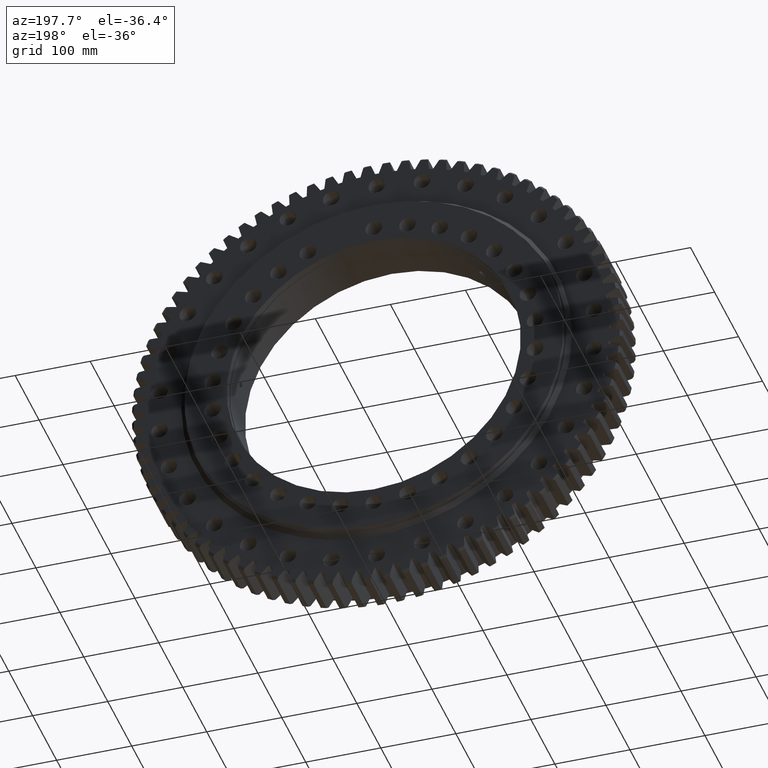
[diagram: clean part render]
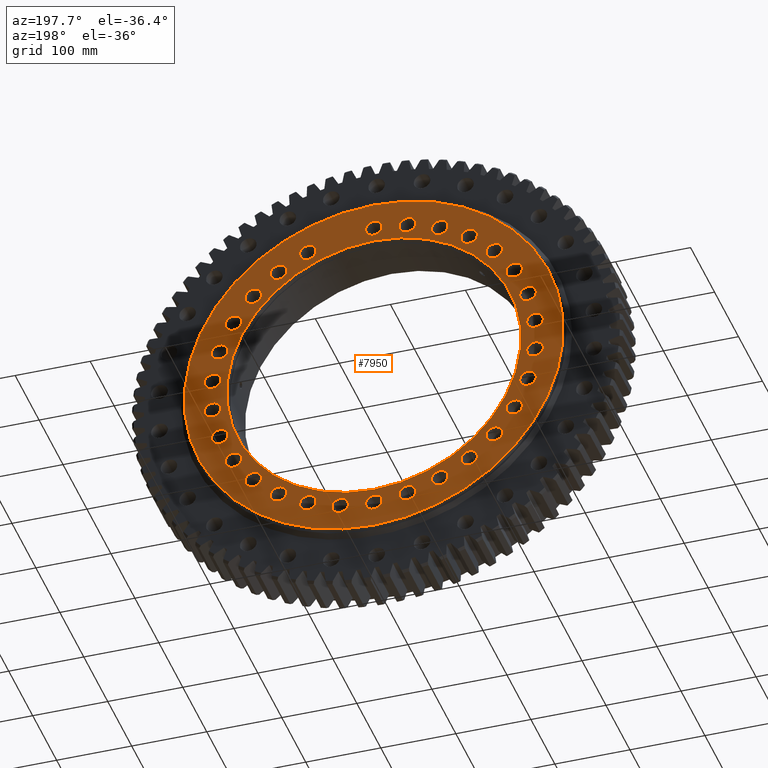
[diagram: same view with one face highlighted and labeled with its STEP entity id]
A machine part, auxiliary view. The second image highlights one B-rep face of the part: STEP entity #7950.
In plain terms, the highlighted planar face has unit normal (0, -1, 0).
Its self-contained STEP definition (entity closure, byte-faithful):
#9 = DIRECTION ( 'NONE',  ( 3.081487911019577400E-033, 1.000000000000000000, -2.727064569436389400E-017 ) ) ;
#85 = DIRECTION ( 'NONE',  ( 0.0000000000000000000, 1.000000000000000000, -2.727064569436389400E-017 ) ) ;
#88 = DIRECTION ( 'NONE',  ( -0.0000000000000000000, 1.000000000000000000, -2.727064569436389700E-017 ) ) ;
#89 = ORIENTED_EDGE ( 'NONE', *, *, #14881, .F. ) ;
#95 = DIRECTION ( 'NONE',  ( 0.9945218953682722900, 0.0000000000000000000, 0.1045284632676636000 ) ) ;
#107 = FACE_BOUND ( 'NONE', #11548, .T. ) ;
#123 = VERTEX_POINT ( 'NONE', #18069 ) ;
#128 = CARTESIAN_POINT ( 'NONE',  ( -126.9616144951719000, 42.49999999999998600, 174.7476707849903300 ) ) ;
#150 = CARTESIAN_POINT ( 'NONE',  ( 214.8167293995471700, 42.49999999999998600, 33.57814806581223600 ) ) ;
#190 = DIRECTION ( 'NONE',  ( 0.7431448254773853600, 0.0000000000000000000, 0.6691306063588680100 ) ) ;
#197 = DIRECTION ( 'NONE',  ( 3.081487911019577400E-033, 1.000000000000000000, -2.727064569436389400E-017 ) ) ;
#228 = CARTESIAN_POINT ( 'NONE',  ( 187.0614872174390700, 42.49999999999998600, 118.9999999999994900 ) ) ;
#278 = EDGE_LOOP ( 'NONE', ( #6828, #15439 ) ) ;
#388 = AXIS2_PLACEMENT_3D ( 'NONE', #7266, #20115, #9087 ) ;
#394 = CARTESIAN_POINT ( 'NONE',  ( 87.85511490437149000, 42.49999999999997900, -197.3258188508024500 ) ) ;
#408 = VERTEX_POINT ( 'NONE', #20280 ) ;
#415 = DIRECTION ( 'NONE',  ( 0.0000000000000000000, 0.0000000000000000000, 1.000000000000000000 ) ) ;
#428 = VERTEX_POINT ( 'NONE', #150 ) ;
#500 = DIRECTION ( 'NONE',  ( 3.081487911019577400E-033, 1.000000000000000000, -2.727064569436389700E-017 ) ) ;
#533 = CIRCLE ( 'NONE', #9319, 10.99999999999998000 ) ;
#630 = ORIENTED_EDGE ( 'NONE', *, *, #8201, .F. ) ;
#670 = ORIENTED_EDGE ( 'NONE', *, *, #1595, .F. ) ;
#704 = VERTEX_POINT ( 'NONE', #5692 ) ;
#740 = CARTESIAN_POINT ( 'NONE',  ( 187.0614872174390700, 42.49999999999998600, 107.9999999999995000 ) ) ;
#796 = DIRECTION ( 'NONE',  ( -0.9510565162951520900, 0.0000000000000000000, -0.3090169943749517300 ) ) ;
#833 = DIRECTION ( 'NONE',  ( 0.5877852522924625900, 0.0000000000000000000, 0.8090169943749552200 ) ) ;
#842 = ORIENTED_EDGE ( 'NONE', *, *, #19606, .F. ) ;
#898 = VERTEX_POINT ( 'NONE', #15735 ) ;
#975 = CARTESIAN_POINT ( 'NONE',  ( -44.90892521663774800, 42.49999999999997900, -200.2798817585016900 ) ) ;
#979 = DIRECTION ( 'NONE',  ( 0.9510565162951499800, 0.0000000000000000000, 0.3090169943749581600 ) ) ;
#1002 = DIRECTION ( 'NONE',  ( 0.8660254037844433700, 0.0000000000000000000, -0.4999999999999919500 ) ) ;
#1045 = DIRECTION ( 'NONE',  ( -0.9945218953682737300, 0.0000000000000000000, 0.1045284632676502500 ) ) ;
#1070 = EDGE_CURVE ( 'NONE', #17991, #16471, #6625, .T. ) ;
#1104 = ORIENTED_EDGE ( 'NONE', *, *, #14939, .F. ) ;
#1114 = VERTEX_POINT ( 'NONE', #7047 ) ;
#1134 = EDGE_CURVE ( 'NONE', #4008, #8260, #15826, .T. ) ;
#1156 = DIRECTION ( 'NONE',  ( 0.5877852522924625900, 0.0000000000000000000, 0.8090169943749552200 ) ) ;
#1161 = EDGE_CURVE ( 'NONE', #3146, #123, #6062, .T. ) ;
#1192 = DIRECTION ( 'NONE',  ( -3.081487911019577400E-033, 1.000000000000000000, -2.727064569436390300E-017 ) ) ;
#1194 = VERTEX_POINT ( 'NONE', #10556 ) ;
#1241 = DIRECTION ( 'NONE',  ( 1.540743955509788700E-033, 1.000000000000000000, -2.727064569436389700E-017 ) ) ;
#1244 = AXIS2_PLACEMENT_3D ( 'NONE', #394, #13225, #2225 ) ;
#1311 = DIRECTION ( 'NONE',  ( -3.081487911019577400E-033, 1.000000000000000000, -2.727064569436389100E-017 ) ) ;
#1362 = DIRECTION ( 'NONE',  ( -0.0000000000000000000, 1.000000000000000000, -2.727064569436389700E-017 ) ) ;
#1377 = VERTEX_POINT ( 'NONE', #8453 ) ;
#1407 = ORIENTED_EDGE ( 'NONE', *, *, #20841, .F. ) ;
#1458 = EDGE_CURVE ( 'NONE', #21632, #9082, #4061, .T. ) ;
#1531 = FACE_OUTER_BOUND ( 'NONE', #17946, .T. ) ;
#1534 = VERTEX_POINT ( 'NONE', #18739 ) ;
#1535 = CIRCLE ( 'NONE', #13475, 11.00000000000000000 ) ;
#1572 = VERTEX_POINT ( 'NONE', #18655 ) ;
#1595 = EDGE_CURVE ( 'NONE', #14203, #898, #15801, .T. ) ;
#1610 = DIRECTION ( 'NONE',  ( 3.081487911019577400E-033, 1.000000000000000000, -2.727064569436389400E-017 ) ) ;
#1633 = DIRECTION ( 'NONE',  ( 0.5877852522924800200, 0.0000000000000000000, -0.8090169943749423400 ) ) ;
#1820 = ORIENTED_EDGE ( 'NONE', *, *, #12333, .F. ) ;
#1837 = ORIENTED_EDGE ( 'NONE', *, *, #19905, .F. ) ;
#1947 = ORIENTED_EDGE ( 'NONE', *, *, #23724, .F. ) ;
#1964 = DIRECTION ( 'NONE',  ( -0.5877852522924742500, 0.0000000000000000000, 0.8090169943749464500 ) ) ;
#1978 = DIRECTION ( 'NONE',  ( 3.081487911019577400E-033, 1.000000000000000000, -2.727064569436389700E-017 ) ) ;
#1991 = CIRCLE ( 'NONE', #20327, 10.99999999999999800 ) ;
#2075 = DIRECTION ( 'NONE',  ( 3.081487911019577400E-033, 1.000000000000000000, -2.727064569436389700E-017 ) ) ;
#2084 = CARTESIAN_POINT ( 'NONE',  ( -87.85511490437453100, 42.49999999999997900, -186.3258188508011100 ) ) ;
#2088 = CARTESIAN_POINT ( 'NONE',  ( 44.90892521663451500, 42.49999999999997900, -211.2798817585023400 ) ) ;
#2103 = FACE_BOUND ( 'NONE', #7501, .T. ) ;
#2145 = AXIS2_PLACEMENT_3D ( 'NONE', #3776, #16592, #5602 ) ;
#2208 = DIRECTION ( 'NONE',  ( -3.081487911019577400E-033, 1.000000000000000000, -2.727064569436390300E-017 ) ) ;
#2225 = DIRECTION ( 'NONE',  ( 0.4067366430758076500, 0.0000000000000000000, -0.9135454576425975400 ) ) ;
#2240 = AXIS2_PLACEMENT_3D ( 'NONE', #23136, #12134, #1156 ) ;
#2256 = CARTESIAN_POINT ( 'NONE',  ( 44.90892521663451500, 42.49999999999997900, -200.2798817585023700 ) ) ;
#2262 = AXIS2_PLACEMENT_3D ( 'NONE', #10991, #9, #12842 ) ;
#2369 = AXIS2_PLACEMENT_3D ( 'NONE', #16162, #5171, #18028 ) ;
#2377 = ORIENTED_EDGE ( 'NONE', *, *, #23804, .F. ) ;
#2378 = EDGE_LOOP ( 'NONE', ( #23634, #6316 ) ) ;
#2410 = CARTESIAN_POINT ( 'NONE',  ( 2.400307726328812400E-014, 42.49999999999997900, -196.0000000000000000 ) ) ;
#2472 = CARTESIAN_POINT ( 'NONE',  ( 126.9616144951731200, 42.49999999999997900, -174.7476707849894500 ) ) ;
#2507 = DIRECTION ( 'NONE',  ( -6.162975822039154700E-033, 1.000000000000000000, -2.727064569436388700E-017 ) ) ;
#2548 = ORIENTED_EDGE ( 'NONE', *, *, #22255, .F. ) ;
#2555 = EDGE_LOOP ( 'NONE', ( #21933, #3973 ) ) ;
#2580 = DIRECTION ( 'NONE',  ( 0.8660254037844331600, 0.0000000000000000000, 0.5000000000000096600 ) ) ;
#2617 = DIRECTION ( 'NONE',  ( 0.0000000000000000000, 1.000000000000000000, -2.727064569436390300E-017 ) ) ;
#2695 = FACE_BOUND ( 'NONE', #18066, .T. ) ;
#2718 = AXIS2_PLACEMENT_3D ( 'NONE', #8237, #21099, #10068 ) ;
#2726 = VERTEX_POINT ( 'NONE', #8627 ) ;
#2747 = EDGE_LOOP ( 'NONE', ( #630, #1947 ) ) ;
#2811 = ORIENTED_EDGE ( 'NONE', *, *, #8851, .T. ) ;
#2984 = DIRECTION ( 'NONE',  ( 3.081487911019577400E-033, 1.000000000000000000, -2.727064569436389700E-017 ) ) ;
#2999 = CIRCLE ( 'NONE', #9293, 10.99999999999998000 ) ;
#3022 = CIRCLE ( 'NONE', #21210, 196.0000000000000000 ) ;
#3021 = CIRCLE ( 'NONE', #8002, 10.99999999999999600 ) ;
#3037 = EDGE_CURVE ( 'NONE', #20845, #5108, #7656, .T. ) ;
#3093 = AXIS2_PLACEMENT_3D ( 'NONE', #18202, #7188, #20035 ) ;
#3107 = ORIENTED_EDGE ( 'NONE', *, *, #10676, .T. ) ;
#3111 = CARTESIAN_POINT ( 'NONE',  ( -126.9616144951758200, 42.49999999999997900, -185.7476707849874600 ) ) ;
#3146 = VERTEX_POINT ( 'NONE', #13233 ) ;
#3225 = EDGE_CURVE ( 'NONE', #9479, #15972, #23151, .T. ) ;
#3272 = FACE_BOUND ( 'NONE', #2555, .T. ) ;
#3400 = VERTEX_POINT ( 'NONE', #5029 ) ;
#3406 = CIRCLE ( 'NONE', #18406, 10.99999999999998000 ) ;
#3479 = CIRCLE ( 'NONE', #2240, 10.99999999999998800 ) ;
#3623 = CIRCLE ( 'NONE', #4004, 10.99999999999999100 ) ;
#3634 = EDGE_CURVE ( 'NONE', #18002, #3400, #6460, .T. ) ;
#3725 = EDGE_LOOP ( 'NONE', ( #15157, #10964 ) ) ;
#3776 = CARTESIAN_POINT ( 'NONE',  ( 0.0000000000000000000, 42.49999999999998600, 0.0000000000000000000 ) ) ;
#3789 = CARTESIAN_POINT ( 'NONE',  ( 214.8167293995469700, 42.49999999999998600, -22.57814806581411900 ) ) ;
#3812 = CIRCLE ( 'NONE', #20946, 11.00000000000000000 ) ;
#3849 = FACE_BOUND ( 'NONE', #18312, .T. ) ;
#3944 = DIRECTION ( 'NONE',  ( -3.081487911019577400E-033, 1.000000000000000000, -2.727064569436389700E-017 ) ) ;
#3945 = DIRECTION ( 'NONE',  ( 0.2079116908177661400, 0.0000000000000000000, -0.9781476007338042500 ) ) ;
#3973 = ORIENTED_EDGE ( 'NONE', *, *, #17455, .F. ) ;
#3995 = CARTESIAN_POINT ( 'NONE',  ( 87.85511490437325200, 42.49999999999998600, 186.3258188508017100 ) ) ;
#4004 = AXIS2_PLACEMENT_3D ( 'NONE', #2472, #15306, #4308 ) ;
#4008 = VERTEX_POINT ( 'NONE', #5238 ) ;
#4042 = CARTESIAN_POINT ( 'NONE',  ( 87.85511490437149000, 42.49999999999997900, -208.3258188508024200 ) ) ;
#4061 = CIRCLE ( 'NONE', #20877, 10.99999999999999100 ) ;
#4102 = EDGE_LOOP ( 'NONE', ( #22699, #16145 ) ) ;
#4123 = AXIS2_PLACEMENT_3D ( 'NONE', #10653, #1610, #6877 ) ;
#4124 = AXIS2_PLACEMENT_3D ( 'NONE', #23002, #12000, #1045 ) ;
#4190 = DIRECTION ( 'NONE',  ( 7.703719777548943400E-034, 1.000000000000000000, -2.727064569436389700E-017 ) ) ;
#4308 = DIRECTION ( 'NONE',  ( 0.5877852522924800200, 0.0000000000000000000, -0.8090169943749423400 ) ) ;
#4421 = FACE_BOUND ( 'NONE', #15576, .T. ) ;
#4459 = EDGE_CURVE ( 'NONE', #5108, #20845, #3022, .T. ) ;
#4553 = ORIENTED_EDGE ( 'NONE', *, *, #12688, .F. ) ;
#4590 = VERTEX_POINT ( 'NONE', #21168 ) ;
#4620 = CIRCLE ( 'NONE', #2369, 10.99999999999997900 ) ;
#4806 = EDGE_CURVE ( 'NONE', #5969, #5846, #11308, .T. ) ;
#4826 = AXIS2_PLACEMENT_3D ( 'NONE', #11455, #500, #13332 ) ;
#4835 = CIRCLE ( 'NONE', #12715, 10.99999999999999300 ) ;
#4859 = EDGE_CURVE ( 'NONE', #3400, #18002, #8997, .T. ) ;
#4894 = CARTESIAN_POINT ( 'NONE',  ( -126.9616144951758200, 42.49999999999997900, -174.7476707849874900 ) ) ;
#4920 = EDGE_CURVE ( 'NONE', #5861, #1534, #12165, .T. ) ;
#4975 = AXIS2_PLACEMENT_3D ( 'NONE', #22062, #11071, #95 ) ;
#5014 = AXIS2_PLACEMENT_3D ( 'NONE', #17232, #6207, #19092 ) ;
#5029 = CARTESIAN_POINT ( 'NONE',  ( -126.9616144951719000, 42.49999999999998600, 163.7476707849903600 ) ) ;
#5108 = VERTEX_POINT ( 'NONE', #2410 ) ;
#5163 = AXIS2_PLACEMENT_3D ( 'NONE', #13601, #2617, #15445 ) ;
#5171 = DIRECTION ( 'NONE',  ( 7.703719777548943400E-034, 1.000000000000000000, -2.727064569436389700E-017 ) ) ;
#5238 = CARTESIAN_POINT ( 'NONE',  ( 187.0614872174382100, 42.49999999999998600, -97.00000000000098100 ) ) ;
#5262 = CIRCLE ( 'NONE', #13717, 252.4999999999999400 ) ;
#5366 = DIRECTION ( 'NONE',  ( -3.081487911019577400E-033, 1.000000000000000000, -2.727064569436389700E-017 ) ) ;
#5465 = CIRCLE ( 'NONE', #388, 10.99999999999999600 ) ;
#5490 = CIRCLE ( 'NONE', #14418, 10.99999999999999500 ) ;
#5513 = EDGE_CURVE ( 'NONE', #19658, #22278, #16199, .T. ) ;
#5523 = VERTEX_POINT ( 'NONE', #16975 ) ;
#5535 = CARTESIAN_POINT ( 'NONE',  ( 214.8167293995469700, 42.49999999999998600, -22.57814806581411900 ) ) ;
#5602 = DIRECTION ( 'NONE',  ( 0.0000000000000000000, -3.540251991789402200E-017, -1.000000000000000000 ) ) ;
#5609 = DIRECTION ( 'NONE',  ( 0.9945218953682744000, 0.0000000000000000000, -0.1045284632676437000 ) ) ;
#5643 = AXIS2_PLACEMENT_3D ( 'NONE', #18071, #21755, #10753 ) ;
#5675 = ORIENTED_EDGE ( 'NONE', *, *, #4920, .F. ) ;
#5692 = CARTESIAN_POINT ( 'NONE',  ( 214.8167293995469700, 42.49999999999998600, -33.57814806581410500 ) ) ;
#5743 = EDGE_CURVE ( 'NONE', #6963, #1194, #7877, .T. ) ;
#5745 = EDGE_CURVE ( 'NONE', #10323, #704, #2999, .T. ) ;
#5777 = CARTESIAN_POINT ( 'NONE',  ( -214.8167293995473100, 42.49999999999998600, -33.57814806581082900 ) ) ;
#5846 = VERTEX_POINT ( 'NONE', #16772 ) ;
#5861 = VERTEX_POINT ( 'NONE', #2084 ) ;
#5872 = EDGE_CURVE ( 'NONE', #12977, #11713, #11014, .T. ) ;
#5969 = VERTEX_POINT ( 'NONE', #17246 ) ;
#6015 = CARTESIAN_POINT ( 'NONE',  ( 160.5192823031163400, 42.49999999999998600, -155.5322109735143400 ) ) ;
#6023 = EDGE_CURVE ( 'NONE', #21188, #1114, #22201, .T. ) ;
#6040 = CARTESIAN_POINT ( 'NONE',  ( 87.85511490437325200, 42.49999999999998600, 208.3258188508016800 ) ) ;
#6062 = CIRCLE ( 'NONE', #12722, 10.99999999999997900 ) ;
#6075 = CIRCLE ( 'NONE', #9172, 10.99999999999998400 ) ;
#6080 = DIRECTION ( 'NONE',  ( 9.244463733058732100E-033, 1.000000000000000000, -2.727064569436389400E-017 ) ) ;
#6172 = CARTESIAN_POINT ( 'NONE',  ( 160.5192823031163400, 42.49999999999998600, -144.5322109735143400 ) ) ;
#6207 = DIRECTION ( 'NONE',  ( 7.703719777548943400E-034, 1.000000000000000000, -2.727064569436389400E-017 ) ) ;
#6252 = EDGE_CURVE ( 'NONE', #11713, #12977, #13884, .T. ) ;
#6279 = ORIENTED_EDGE ( 'NONE', *, *, #7327, .F. ) ;
#6296 = DIRECTION ( 'NONE',  ( -2.189528850507526700E-047, 1.000000000000000000, -2.727064569436389100E-017 ) ) ;
#6316 = ORIENTED_EDGE ( 'NONE', *, *, #4459, .T. ) ;
#6367 = EDGE_LOOP ( 'NONE', ( #18520, #15188 ) ) ;
#6384 = FACE_BOUND ( 'NONE', #2378, .T. ) ;
#6460 = CIRCLE ( 'NONE', #12288, 11.00000000000000500 ) ;
#6493 = CARTESIAN_POINT ( 'NONE',  ( -44.90892521663307900, 42.49999999999998600, 200.2798817585027100 ) ) ;
#6552 = VERTEX_POINT ( 'NONE', #4042 ) ;
#6580 = EDGE_LOOP ( 'NONE', ( #19909, #18492 ) ) ;
#6597 = ORIENTED_EDGE ( 'NONE', *, *, #10840, .F. ) ;
#6625 = CIRCLE ( 'NONE', #4123, 10.99999999999999300 ) ;
#6659 = CIRCLE ( 'NONE', #22875, 10.99999999999999300 ) ;
#6684 = VERTEX_POINT ( 'NONE', #19057 ) ;
#6687 = CIRCLE ( 'NONE', #7772, 10.99999999999998000 ) ;
#6733 = DIRECTION ( 'NONE',  ( -0.5877852522924699200, 0.0000000000000000000, -0.8090169943749497800 ) ) ;
#6770 = DIRECTION ( 'NONE',  ( 1.540743955509788700E-033, 1.000000000000000000, -2.727064569436389100E-017 ) ) ;
#6822 = AXIS2_PLACEMENT_3D ( 'NONE', #11064, #85, #12915 ) ;
#6828 = ORIENTED_EDGE ( 'NONE', *, *, #6252, .F. ) ;
#6877 = DIRECTION ( 'NONE',  ( -0.5877852522924699200, 0.0000000000000000000, -0.8090169943749497800 ) ) ;
#6892 = ORIENTED_EDGE ( 'NONE', *, *, #15784, .F. ) ;
#6962 = FACE_BOUND ( 'NONE', #23810, .T. ) ;
#6963 = VERTEX_POINT ( 'NONE', #14448 ) ;
#6965 = ORIENTED_EDGE ( 'NONE', *, *, #3634, .F. ) ;
#6984 = CARTESIAN_POINT ( 'NONE',  ( 205.4282075197528500, 42.49999999999998600, -77.74767078498962300 ) ) ;
#6996 = EDGE_CURVE ( 'NONE', #5523, #21861, #7018, .T. ) ;
#7018 = CIRCLE ( 'NONE', #23480, 10.99999999999998800 ) ;
#7046 = VERTEX_POINT ( 'NONE', #14772 ) ;
#7047 = CARTESIAN_POINT ( 'NONE',  ( 205.4282075197528500, 42.49999999999998600, -55.74767078498965100 ) ) ;
#7119 = VERTEX_POINT ( 'NONE', #22293 ) ;
#7126 = CARTESIAN_POINT ( 'NONE',  ( 205.4282075197534700, 42.49999999999998600, 77.74767078498784700 ) ) ;
#7129 = EDGE_LOOP ( 'NONE', ( #1104, #22671 ) ) ;
#7156 = AXIS2_PLACEMENT_3D ( 'NONE', #14919, #3944, #16774 ) ;
#7188 = DIRECTION ( 'NONE',  ( 9.244463733058732100E-033, 1.000000000000000000, -2.727064569436388400E-017 ) ) ;
#7266 = CARTESIAN_POINT ( 'NONE',  ( -214.8167293995473100, 42.49999999999998600, -22.57814806581084400 ) ) ;
#7273 = EDGE_CURVE ( 'NONE', #18973, #7046, #15916, .T. ) ;
#7327 = EDGE_CURVE ( 'NONE', #22657, #17593, #9868, .T. ) ;
#7377 = DIRECTION ( 'NONE',  ( 0.9945218953682744000, 0.0000000000000000000, -0.1045284632676437000 ) ) ;
#7491 = CIRCLE ( 'NONE', #16036, 10.99999999999998400 ) ;
#7501 = EDGE_LOOP ( 'NONE', ( #6892, #22451 ) ) ;
#7506 = CARTESIAN_POINT ( 'NONE',  ( 0.0000000000000000000, 42.49999999999998600, 252.4999999999999400 ) ) ;
#7533 = ORIENTED_EDGE ( 'NONE', *, *, #6996, .F. ) ;
#7550 = FACE_BOUND ( 'NONE', #22219, .T. ) ;
#7555 = DIRECTION ( 'NONE',  ( -7.703719777548943400E-034, 1.000000000000000000, -2.727064569436388700E-017 ) ) ;
#7656 = CIRCLE ( 'NONE', #2145, 196.0000000000000000 ) ;
#7715 = ORIENTED_EDGE ( 'NONE', *, *, #20954, .F. ) ;
#7772 = AXIS2_PLACEMENT_3D ( 'NONE', #13084, #2075, #14906 ) ;
#7801 = AXIS2_PLACEMENT_3D ( 'NONE', #19577, #1311, #12276 ) ;
#7816 = AXIS2_PLACEMENT_3D ( 'NONE', #10080, #22933, #11944 ) ;
#7829 = ORIENTED_EDGE ( 'NONE', *, *, #22024, .F. ) ;
#7838 = CARTESIAN_POINT ( 'NONE',  ( -44.90892521663774800, 42.49999999999997900, -211.2798817585016900 ) ) ;
#7865 = CARTESIAN_POINT ( 'NONE',  ( 3.109971580429500500E-012, 42.49999999999998600, 205.0000000000000600 ) ) ;
#7875 = EDGE_LOOP ( 'NONE', ( #1407, #15319 ) ) ;
#7877 = CIRCLE ( 'NONE', #6822, 10.99999999999999600 ) ;
#7950 = ADVANCED_FACE ( 'NONE', ( #107, #19069, #11002, #14166, #9265, #4421, #23359, #18483, #13604, #8689, #3849, #22783, #17908, #13027, #8129, #3272, #22188, #17328, #12437, #7550, #2695, #21627, #16748, #11858, #6962, #2103, #21057, #16165, #11270, #6384, #1531 ), #12525, .F. ) ;
#7953 = CARTESIAN_POINT ( 'NONE',  ( 87.85511490437149000, 42.49999999999997900, -197.3258188508024500 ) ) ;
#8002 = AXIS2_PLACEMENT_3D ( 'NONE', #9934, #22800, #11794 ) ;
#8026 = DIRECTION ( 'NONE',  ( 0.7431448254773996800, 0.0000000000000000000, -0.6691306063588521300 ) ) ;
#8046 = EDGE_CURVE ( 'NONE', #898, #14203, #10112, .T. ) ;
#8129 = FACE_BOUND ( 'NONE', #20490, .T. ) ;
#8201 = EDGE_CURVE ( 'NONE', #9081, #1377, #6659, .T. ) ;
#8237 = CARTESIAN_POINT ( 'NONE',  ( 205.4282075197528500, 42.49999999999998600, -66.74767078498963700 ) ) ;
#8260 = VERTEX_POINT ( 'NONE', #21423 ) ;
#8275 = VERTEX_POINT ( 'NONE', #14033 ) ;
#8296 = ORIENTED_EDGE ( 'NONE', *, *, #20520, .F. ) ;
#8312 = AXIS2_PLACEMENT_3D ( 'NONE', #17099, #6080, #18953 ) ;
#8349 = CIRCLE ( 'NONE', #1244, 10.99999999999998000 ) ;
#8396 = ORIENTED_EDGE ( 'NONE', *, *, #3225, .F. ) ;
#8398 = EDGE_LOOP ( 'NONE', ( #89, #13354 ) ) ;
#8402 = DIRECTION ( 'NONE',  ( 1.540743955509788700E-033, 1.000000000000000000, -2.727064569436389700E-017 ) ) ;
#8453 = CARTESIAN_POINT ( 'NONE',  ( 187.0614872174390700, 42.49999999999998600, 96.99999999999950300 ) ) ;
#8506 = CARTESIAN_POINT ( 'NONE',  ( 160.5192823031175400, 42.49999999999998600, 133.5322109735130300 ) ) ;
#8531 = DIRECTION ( 'NONE',  ( 9.244463733058732100E-033, 1.000000000000000000, -2.727064569436388400E-017 ) ) ;
#8627 = CARTESIAN_POINT ( 'NONE',  ( -160.5192823031185300, 42.49999999999998600, -155.5322109735118700 ) ) ;
#8689 = FACE_BOUND ( 'NONE', #17203, .T. ) ;
#8774 = EDGE_CURVE ( 'NONE', #13018, #23586, #6075, .T. ) ;
#8851 = EDGE_CURVE ( 'NONE', #22614, #18291, #13558, .T. ) ;
#8939 = AXIS2_PLACEMENT_3D ( 'NONE', #20853, #9829, #22682 ) ;
#8977 = DIRECTION ( 'NONE',  ( 3.081487911019577400E-033, 1.000000000000000000, -2.727064569436389700E-017 ) ) ;
#8997 = CIRCLE ( 'NONE', #11689, 11.00000000000000500 ) ;
#9081 = VERTEX_POINT ( 'NONE', #228 ) ;
#9082 = VERTEX_POINT ( 'NONE', #22190 ) ;
#9087 = DIRECTION ( 'NONE',  ( -0.9945218953682729600, 0.0000000000000000000, -0.1045284632676571100 ) ) ;
#9110 = EDGE_CURVE ( 'NONE', #21757, #6552, #8349, .T. ) ;
#9116 = CARTESIAN_POINT ( 'NONE',  ( 160.5192823031175400, 42.49999999999998600, 144.5322109735130000 ) ) ;
#9172 = AXIS2_PLACEMENT_3D ( 'NONE', #22935, #11946, #979 ) ;
#9198 = EDGE_LOOP ( 'NONE', ( #19645, #17915 ) ) ;
#9213 = CIRCLE ( 'NONE', #4826, 10.99999999999999600 ) ;
#9265 = FACE_BOUND ( 'NONE', #15816, .T. ) ;
#9293 = AXIS2_PLACEMENT_3D ( 'NONE', #3789, #16602, #5609 ) ;
#9319 = AXIS2_PLACEMENT_3D ( 'NONE', #7953, #20796, #9768 ) ;
#9391 = EDGE_LOOP ( 'NONE', ( #2377, #1820 ) ) ;
#9413 = CARTESIAN_POINT ( 'NONE',  ( -87.85511490437453100, 42.49999999999997900, -197.3258188508010800 ) ) ;
#9479 = VERTEX_POINT ( 'NONE', #14327 ) ;
#9648 = AXIS2_PLACEMENT_3D ( 'NONE', #22817, #11805, #833 ) ;
#9653 = DIRECTION ( 'NONE',  ( -0.2079116908177529600, 0.0000000000000000000, -0.9781476007338069100 ) ) ;
#9765 = CARTESIAN_POINT ( 'NONE',  ( 0.0000000000000000000, 42.49999999999998600, 0.0000000000000000000 ) ) ;
#9768 = DIRECTION ( 'NONE',  ( 0.4067366430758076500, 0.0000000000000000000, -0.9135454576425975400 ) ) ;
#9825 = CIRCLE ( 'NONE', #17951, 10.99999999999999800 ) ;
#9829 = DIRECTION ( 'NONE',  ( -3.081487911019577400E-033, 1.000000000000000000, -2.727064569436389400E-017 ) ) ;
#9838 = CARTESIAN_POINT ( 'NONE',  ( 205.4282075197534700, 42.49999999999998600, 66.74767078498784700 ) ) ;
#9868 = CIRCLE ( 'NONE', #4124, 10.99999999999998800 ) ;
#9934 = CARTESIAN_POINT ( 'NONE',  ( -160.5192823031153500, 42.49999999999998600, 144.5322109735153900 ) ) ;
#9983 = VERTEX_POINT ( 'NONE', #15746 ) ;
#10068 = DIRECTION ( 'NONE',  ( 0.9510565162951566400, 0.0000000000000000000, -0.3090169943749376800 ) ) ;
#10080 = CARTESIAN_POINT ( 'NONE',  ( -160.5192823031185300, 42.49999999999998600, -144.5322109735118700 ) ) ;
#10112 = CIRCLE ( 'NONE', #11792, 10.99999999999999300 ) ;
#10281 = ORIENTED_EDGE ( 'NONE', *, *, #6023, .F. ) ;
#10323 = VERTEX_POINT ( 'NONE', #16797 ) ;
#10399 = VERTEX_POINT ( 'NONE', #6015 ) ;
#10448 = AXIS2_PLACEMENT_3D ( 'NONE', #9413, #22279, #11267 ) ;
#10451 = CIRCLE ( 'NONE', #16615, 10.99999999999998900 ) ;
#10457 = DIRECTION ( 'NONE',  ( 0.0000000000000000000, 1.000000000000000000, -2.727064569436389700E-017 ) ) ;
#10556 = CARTESIAN_POINT ( 'NONE',  ( -160.5192823031153500, 42.49999999999998600, 133.5322109735154200 ) ) ;
#10559 = AXIS2_PLACEMENT_3D ( 'NONE', #19527, #8531, #21394 ) ;
#10601 = DIRECTION ( 'NONE',  ( -2.189528850507526700E-047, 1.000000000000000000, -2.727064569436389100E-017 ) ) ;
#10653 = CARTESIAN_POINT ( 'NONE',  ( -126.9616144951758200, 42.49999999999997900, -174.7476707849874900 ) ) ;
#10676 = EDGE_CURVE ( 'NONE', #18291, #22614, #5262, .T. ) ;
#10753 = DIRECTION ( 'NONE',  ( 0.0000000000000000000, -2.727064569436389700E-017, -1.000000000000000000 ) ) ;
#10818 = EDGE_LOOP ( 'NONE', ( #14043, #20712 ) ) ;
#10840 = EDGE_CURVE ( 'NONE', #17593, #22657, #15875, .T. ) ;
#10964 = ORIENTED_EDGE ( 'NONE', *, *, #20181, .F. ) ;
#10977 = AXIS2_PLACEMENT_3D ( 'NONE', #13484, #2507, #15340 ) ;
#10982 = DIRECTION ( 'NONE',  ( 0.7431448254773853600, 0.0000000000000000000, 0.6691306063588680100 ) ) ;
#10991 = CARTESIAN_POINT ( 'NONE',  ( -205.4282075197524200, 42.49999999999998600, 66.74767078499107200 ) ) ;
#10999 = ORIENTED_EDGE ( 'NONE', *, *, #21123, .F. ) ;
#11002 = FACE_BOUND ( 'NONE', #6367, .T. ) ;
#11014 = CIRCLE ( 'NONE', #15463, 10.99999999999998200 ) ;
#11064 = CARTESIAN_POINT ( 'NONE',  ( -160.5192823031153500, 42.49999999999998600, 144.5322109735153900 ) ) ;
#11065 = CARTESIAN_POINT ( 'NONE',  ( 0.0000000000000000000, 42.49999999999998600, -2.005186205590376800E-015 ) ) ;
#11071 = DIRECTION ( 'NONE',  ( -3.081487911019577400E-033, 1.000000000000000000, -2.727064569436389400E-017 ) ) ;
#11150 = DIRECTION ( 'NONE',  ( -3.081487911019577400E-033, 1.000000000000000000, -2.727064569436389700E-017 ) ) ;
#11157 = CARTESIAN_POINT ( 'NONE',  ( -205.4282075197524200, 42.49999999999998600, 66.74767078499107200 ) ) ;
#11188 = CIRCLE ( 'NONE', #15437, 10.99999999999999300 ) ;
#11267 = DIRECTION ( 'NONE',  ( -0.4067366430757943200, 0.0000000000000000000, -0.9135454576426035300 ) ) ;
#11270 = FACE_BOUND ( 'NONE', #278, .T. ) ;
#11308 = CIRCLE ( 'NONE', #3093, 10.99999999999998400 ) ;
#11345 = CARTESIAN_POINT ( 'NONE',  ( 0.0000000000000000000, 42.49999999999998600, 196.0000000000000000 ) ) ;
#11378 = DIRECTION ( 'NONE',  ( 0.0000000000000000000, 1.000000000000000000, -2.727064569436389700E-017 ) ) ;
#11397 = CARTESIAN_POINT ( 'NONE',  ( 126.9616144951731200, 42.49999999999997900, -185.7476707849894500 ) ) ;
#11455 = CARTESIAN_POINT ( 'NONE',  ( -214.8167293995473100, 42.49999999999998600, -22.57814806581084400 ) ) ;
#11505 = VERTEX_POINT ( 'NONE', #17111 ) ;
#11528 = EDGE_CURVE ( 'NONE', #10399, #11505, #3812, .T. ) ;
#11548 = EDGE_LOOP ( 'NONE', ( #10999, #14475 ) ) ;
#11609 = CARTESIAN_POINT ( 'NONE',  ( -126.9616144951758200, 42.49999999999997900, -163.7476707849874900 ) ) ;
#11639 = DIRECTION ( 'NONE',  ( 0.0000000000000000000, -3.540251991789402200E-017, -1.000000000000000000 ) ) ;
#11689 = AXIS2_PLACEMENT_3D ( 'NONE', #12978, #1978, #14828 ) ;
#11696 = DIRECTION ( 'NONE',  ( 0.9510565162951499800, 0.0000000000000000000, 0.3090169943749581600 ) ) ;
#11713 = VERTEX_POINT ( 'NONE', #21345 ) ;
#11765 = DIRECTION ( 'NONE',  ( 3.081487911019577400E-033, 1.000000000000000000, -2.727064569436389700E-017 ) ) ;
#11792 = AXIS2_PLACEMENT_3D ( 'NONE', #2088, #14921, #3945 ) ;
#11794 = DIRECTION ( 'NONE',  ( -0.7431448254773949100, 0.0000000000000000000, 0.6691306063588573500 ) ) ;
#11805 = DIRECTION ( 'NONE',  ( 0.0000000000000000000, 1.000000000000000000, -2.727064569436389700E-017 ) ) ;
#11858 = FACE_BOUND ( 'NONE', #2747, .T. ) ;
#11944 = DIRECTION ( 'NONE',  ( -0.7431448254773902500, 0.0000000000000000000, -0.6691306063588627900 ) ) ;
#11946 = DIRECTION ( 'NONE',  ( -3.081487911019577400E-033, 1.000000000000000000, -2.727064569436389400E-017 ) ) ;
#11965 = DIRECTION ( 'NONE',  ( -3.081487911019577400E-033, 1.000000000000000000, -2.727064569436389100E-017 ) ) ;
#11996 = CARTESIAN_POINT ( 'NONE',  ( -205.4282075197524200, 42.49999999999998600, 77.74767078499105800 ) ) ;
#12000 = DIRECTION ( 'NONE',  ( 9.244463733058732100E-033, 1.000000000000000000, -2.727064569436389400E-017 ) ) ;
#12069 = EDGE_CURVE ( 'NONE', #428, #4590, #13544, .T. ) ;
#12129 = CIRCLE ( 'NONE', #19467, 10.99999999999998200 ) ;
#12134 = DIRECTION ( 'NONE',  ( 0.0000000000000000000, 1.000000000000000000, -2.727064569436389700E-017 ) ) ;
#12165 = CIRCLE ( 'NONE', #10448, 11.00000000000000000 ) ;
#12174 = CARTESIAN_POINT ( 'NONE',  ( 87.85511490437325200, 42.49999999999998600, 197.3258188508016800 ) ) ;
#12188 = CARTESIAN_POINT ( 'NONE',  ( -87.85511490437018300, 42.49999999999998600, 197.3258188508030200 ) ) ;
#12224 = CARTESIAN_POINT ( 'NONE',  ( -87.85511490437018300, 42.49999999999998600, 197.3258188508030200 ) ) ;
#12276 = DIRECTION ( 'NONE',  ( 0.8660254037844433700, 0.0000000000000000000, -0.4999999999999919500 ) ) ;
#12288 = AXIS2_PLACEMENT_3D ( 'NONE', #128, #12960, #1964 ) ;
#12333 = EDGE_CURVE ( 'NONE', #17011, #15720, #4620, .T. ) ;
#12340 = CARTESIAN_POINT ( 'NONE',  ( 0.0000000000000000000, 42.49999999999998600, -2.005186205590376800E-015 ) ) ;
#12437 = FACE_BOUND ( 'NONE', #10818, .T. ) ;
#12525 = PLANE ( 'NONE',  #5643 ) ;
#12626 = CARTESIAN_POINT ( 'NONE',  ( 126.9616144951731200, 42.49999999999997900, -174.7476707849894500 ) ) ;
#12688 = EDGE_CURVE ( 'NONE', #16471, #17991, #11188, .T. ) ;
#12715 = AXIS2_PLACEMENT_3D ( 'NONE', #22962, #11965, #1002 ) ;
#12722 = AXIS2_PLACEMENT_3D ( 'NONE', #12188, #8402, #19795 ) ;
#12766 = VERTEX_POINT ( 'NONE', #19980 ) ;
#12842 = DIRECTION ( 'NONE',  ( -0.9510565162951543100, 0.0000000000000000000, 0.3090169943749452900 ) ) ;
#12913 = CIRCLE ( 'NONE', #9648, 10.99999999999998800 ) ;
#12915 = DIRECTION ( 'NONE',  ( -0.7431448254773949100, 0.0000000000000000000, 0.6691306063588573500 ) ) ;
#12917 = DIRECTION ( 'NONE',  ( 0.0000000000000000000, 2.748076793626625700E-017, 1.000000000000000000 ) ) ;
#12960 = DIRECTION ( 'NONE',  ( 3.081487911019577400E-033, 1.000000000000000000, -2.727064569436389700E-017 ) ) ;
#12977 = VERTEX_POINT ( 'NONE', #7865 ) ;
#12978 = CARTESIAN_POINT ( 'NONE',  ( -126.9616144951719000, 42.49999999999998600, 174.7476707849903300 ) ) ;
#13018 = VERTEX_POINT ( 'NONE', #17159 ) ;
#13027 = FACE_BOUND ( 'NONE', #9198, .T. ) ;
#13033 = DIRECTION ( 'NONE',  ( -0.9510565162951543100, 0.0000000000000000000, 0.3090169943749452900 ) ) ;
#13084 = CARTESIAN_POINT ( 'NONE',  ( -187.0614872174374500, 42.49999999999998600, 108.0000000000022700 ) ) ;
#13194 = EDGE_CURVE ( 'NONE', #15393, #15597, #1991, .T. ) ;
#13204 = CARTESIAN_POINT ( 'NONE',  ( 87.85511490437325200, 42.49999999999998600, 197.3258188508016800 ) ) ;
#13225 = DIRECTION ( 'NONE',  ( -1.540743955509788700E-033, 1.000000000000000000, -2.727064569436389400E-017 ) ) ;
#13233 = CARTESIAN_POINT ( 'NONE',  ( -87.85511490437018300, 42.49999999999998600, 186.3258188508030500 ) ) ;
#13287 = AXIS2_PLACEMENT_3D ( 'NONE', #11157, #197, #13033 ) ;
#13332 = DIRECTION ( 'NONE',  ( -0.9945218953682729600, 0.0000000000000000000, -0.1045284632676571100 ) ) ;
#13354 = ORIENTED_EDGE ( 'NONE', *, *, #14568, .F. ) ;
#13401 = AXIS2_PLACEMENT_3D ( 'NONE', #22152, #11150, #190 ) ;
#13475 = AXIS2_PLACEMENT_3D ( 'NONE', #17787, #6770, #19631 ) ;
#13484 = CARTESIAN_POINT ( 'NONE',  ( 160.5192823031163400, 42.49999999999998600, -144.5322109735143400 ) ) ;
#13544 = CIRCLE ( 'NONE', #8939, 10.99999999999997700 ) ;
#13558 = CIRCLE ( 'NONE', #19064, 252.4999999999999400 ) ;
#13567 = DIRECTION ( 'NONE',  ( -3.081487911019577400E-033, 1.000000000000000000, -2.727064569436389700E-017 ) ) ;
#13601 = CARTESIAN_POINT ( 'NONE',  ( -160.5192823031185300, 42.49999999999998600, -144.5322109735118700 ) ) ;
#13604 = FACE_BOUND ( 'NONE', #20900, .T. ) ;
#13717 = AXIS2_PLACEMENT_3D ( 'NONE', #11065, #88, #12917 ) ;
#13724 = EDGE_CURVE ( 'NONE', #7119, #14332, #13847, .T. ) ;
#13772 = CIRCLE ( 'NONE', #21157, 10.99999999999998000 ) ;
#13847 = CIRCLE ( 'NONE', #13287, 10.99999999999999300 ) ;
#13884 = CIRCLE ( 'NONE', #14548, 10.99999999999998200 ) ;
#13973 = CARTESIAN_POINT ( 'NONE',  ( -205.4282075197539000, 42.49999999999998600, -66.74767078498655300 ) ) ;
#14015 = DIRECTION ( 'NONE',  ( 0.4067366430757881100, 0.0000000000000000000, 0.9135454576426063100 ) ) ;
#14018 = ORIENTED_EDGE ( 'NONE', *, *, #19170, .F. ) ;
#14033 = CARTESIAN_POINT ( 'NONE',  ( -214.8167293995473100, 42.49999999999998600, -11.57814806581085200 ) ) ;
#14043 = ORIENTED_EDGE ( 'NONE', *, *, #1134, .F. ) ;
#14064 = DIRECTION ( 'NONE',  ( -0.4067366430758014300, 0.0000000000000000000, 0.9135454576426003100 ) ) ;
#14116 = EDGE_CURVE ( 'NONE', #4590, #428, #18431, .T. ) ;
#14166 = FACE_BOUND ( 'NONE', #3725, .T. ) ;
#14182 = ORIENTED_EDGE ( 'NONE', *, *, #8046, .F. ) ;
#14197 = DIRECTION ( 'NONE',  ( 0.0000000000000000000, 2.748076793626625700E-017, 1.000000000000000000 ) ) ;
#14203 = VERTEX_POINT ( 'NONE', #2256 ) ;
#14234 = EDGE_CURVE ( 'NONE', #23586, #13018, #7491, .T. ) ;
#14262 = AXIS2_PLACEMENT_3D ( 'NONE', #14865, #7555, #22241 ) ;
#14327 = CARTESIAN_POINT ( 'NONE',  ( -205.4282075197539000, 42.49999999999998600, -77.74767078498653900 ) ) ;
#14332 = VERTEX_POINT ( 'NONE', #11996 ) ;
#14418 = AXIS2_PLACEMENT_3D ( 'NONE', #16358, #5366, #18226 ) ;
#14448 = CARTESIAN_POINT ( 'NONE',  ( -160.5192823031153500, 42.49999999999998600, 155.5322109735153900 ) ) ;
#14472 = DIRECTION ( 'NONE',  ( -3.081487911019577400E-033, 1.000000000000000000, -2.727064569436389400E-017 ) ) ;
#14475 = ORIENTED_EDGE ( 'NONE', *, *, #1161, .F. ) ;
#14548 = AXIS2_PLACEMENT_3D ( 'NONE', #21458, #10457, #23312 ) ;
#14556 = AXIS2_PLACEMENT_3D ( 'NONE', #15164, #4190, #17001 ) ;
#14568 = EDGE_CURVE ( 'NONE', #17358, #8275, #5465, .T. ) ;
#14580 = ORIENTED_EDGE ( 'NONE', *, *, #14234, .F. ) ;
#14772 = CARTESIAN_POINT ( 'NONE',  ( -1.600304530570204500E-012, 42.49999999999997900, -205.0000000000000600 ) ) ;
#14828 = DIRECTION ( 'NONE',  ( -0.5877852522924742500, 0.0000000000000000000, 0.8090169943749464500 ) ) ;
#14865 = CARTESIAN_POINT ( 'NONE',  ( 44.90892521663451500, 42.49999999999997900, -211.2798817585023400 ) ) ;
#14876 = EDGE_LOOP ( 'NONE', ( #1837, #8396 ) ) ;
#14881 = EDGE_CURVE ( 'NONE', #8275, #17358, #9213, .T. ) ;
#14906 = DIRECTION ( 'NONE',  ( -0.8660254037844393700, 0.0000000000000000000, 0.4999999999999987800 ) ) ;
#14919 = CARTESIAN_POINT ( 'NONE',  ( 187.0614872174390700, 42.49999999999998600, 107.9999999999995000 ) ) ;
#14921 = DIRECTION ( 'NONE',  ( -7.703719777548943400E-034, 1.000000000000000000, -2.727064569436388700E-017 ) ) ;
#14939 = EDGE_CURVE ( 'NONE', #11505, #10399, #22736, .T. ) ;
#15052 = DIRECTION ( 'NONE',  ( 0.4067366430757881100, 0.0000000000000000000, 0.9135454576426063100 ) ) ;
#15157 = ORIENTED_EDGE ( 'NONE', *, *, #23578, .F. ) ;
#15164 = CARTESIAN_POINT ( 'NONE',  ( -44.90892521663307900, 42.49999999999998600, 211.2798817585026800 ) ) ;
#15188 = ORIENTED_EDGE ( 'NONE', *, *, #19783, .F. ) ;
#15306 = DIRECTION ( 'NONE',  ( -3.081487911019577400E-033, 1.000000000000000000, -2.727064569436389400E-017 ) ) ;
#15312 = CARTESIAN_POINT ( 'NONE',  ( -126.9616144951719000, 42.49999999999998600, 185.7476707849903300 ) ) ;
#15319 = ORIENTED_EDGE ( 'NONE', *, *, #13194, .F. ) ;
#15340 = DIRECTION ( 'NONE',  ( 0.7431448254773996800, 0.0000000000000000000, -0.6691306063588521300 ) ) ;
#15393 = VERTEX_POINT ( 'NONE', #3995 ) ;
#15437 = AXIS2_PLACEMENT_3D ( 'NONE', #4894, #17740, #6733 ) ;
#15439 = ORIENTED_EDGE ( 'NONE', *, *, #5872, .F. ) ;
#15445 = DIRECTION ( 'NONE',  ( -0.7431448254773902500, 0.0000000000000000000, -0.6691306063588627900 ) ) ;
#15463 = AXIS2_PLACEMENT_3D ( 'NONE', #22375, #11378, #415 ) ;
#15521 = CIRCLE ( 'NONE', #10559, 10.99999999999998400 ) ;
#15576 = EDGE_LOOP ( 'NONE', ( #6279, #6597 ) ) ;
#15595 = CARTESIAN_POINT ( 'NONE',  ( -44.90892521663307900, 42.49999999999998600, 222.2798817585026500 ) ) ;
#15597 = VERTEX_POINT ( 'NONE', #6040 ) ;
#15627 = ORIENTED_EDGE ( 'NONE', *, *, #4806, .F. ) ;
#15633 = ORIENTED_EDGE ( 'NONE', *, *, #4859, .F. ) ;
#15645 = CARTESIAN_POINT ( 'NONE',  ( -214.8167293995468600, 42.49999999999998600, 11.57814806581558800 ) ) ;
#15720 = VERTEX_POINT ( 'NONE', #15595 ) ;
#15735 = CARTESIAN_POINT ( 'NONE',  ( 44.90892521663451500, 42.49999999999997900, -222.2798817585023400 ) ) ;
#15746 = CARTESIAN_POINT ( 'NONE',  ( 126.9616144951746000, 42.49999999999998600, 163.7476707849884000 ) ) ;
#15784 = EDGE_CURVE ( 'NONE', #1572, #9983, #3479, .T. ) ;
#15797 = DIRECTION ( 'NONE',  ( -0.9510565162951520900, 0.0000000000000000000, -0.3090169943749517300 ) ) ;
#15801 = CIRCLE ( 'NONE', #14262, 10.99999999999999300 ) ;
#15816 = EDGE_LOOP ( 'NONE', ( #17196, #18984 ) ) ;
#15826 = CIRCLE ( 'NONE', #7801, 10.99999999999999300 ) ;
#15875 = CIRCLE ( 'NONE', #8312, 10.99999999999998800 ) ;
#15916 = CIRCLE ( 'NONE', #23006, 10.99999999999998200 ) ;
#15972 = VERTEX_POINT ( 'NONE', #21836 ) ;
#16036 = AXIS2_PLACEMENT_3D ( 'NONE', #9838, #22697, #11696 ) ;
#16145 = ORIENTED_EDGE ( 'NONE', *, *, #5513, .F. ) ;
#16162 = CARTESIAN_POINT ( 'NONE',  ( -44.90892521663307900, 42.49999999999998600, 211.2798817585026800 ) ) ;
#16165 = FACE_BOUND ( 'NONE', #9391, .T. ) ;
#16199 = CIRCLE ( 'NONE', #20625, 10.99999999999998900 ) ;
#16302 = EDGE_CURVE ( 'NONE', #22278, #19658, #22385, .T. ) ;
#16358 = CARTESIAN_POINT ( 'NONE',  ( 205.4282075197528500, 42.49999999999998600, -66.74767078498963700 ) ) ;
#16471 = VERTEX_POINT ( 'NONE', #3111 ) ;
#16592 = DIRECTION ( 'NONE',  ( 0.0000000000000000000, -1.000000000000000000, 2.727064569436389700E-017 ) ) ;
#16602 = DIRECTION ( 'NONE',  ( 3.081487911019577400E-033, 1.000000000000000000, -2.727064569436389700E-017 ) ) ;
#16615 = AXIS2_PLACEMENT_3D ( 'NONE', #13973, #2984, #15797 ) ;
#16742 = CIRCLE ( 'NONE', #19935, 10.99999999999997900 ) ;
#16748 = FACE_BOUND ( 'NONE', #16857, .T. ) ;
#16772 = CARTESIAN_POINT ( 'NONE',  ( -187.0614872174398600, 42.49999999999998600, -96.99999999999822400 ) ) ;
#16774 = DIRECTION ( 'NONE',  ( 0.8660254037844331600, 0.0000000000000000000, 0.5000000000000096600 ) ) ;
#16796 = CARTESIAN_POINT ( 'NONE',  ( -44.90892521663774800, 42.49999999999997900, -222.2798817585016600 ) ) ;
#16797 = CARTESIAN_POINT ( 'NONE',  ( 214.8167293995469700, 42.49999999999998600, -11.57814806581413200 ) ) ;
#16808 = CIRCLE ( 'NONE', #13401, 10.99999999999998800 ) ;
#16857 = EDGE_LOOP ( 'NONE', ( #14580, #19750 ) ) ;
#16919 = CIRCLE ( 'NONE', #2262, 10.99999999999999300 ) ;
#16975 = CARTESIAN_POINT ( 'NONE',  ( 160.5192823031175400, 42.49999999999998600, 155.5322109735130000 ) ) ;
#16979 = EDGE_CURVE ( 'NONE', #8260, #4008, #4835, .T. ) ;
#17001 = DIRECTION ( 'NONE',  ( -0.2079116908177600900, 0.0000000000000000000, 0.9781476007338054700 ) ) ;
#17011 = VERTEX_POINT ( 'NONE', #6493 ) ;
#17067 = ORIENTED_EDGE ( 'NONE', *, *, #22873, .F. ) ;
#17099 = CARTESIAN_POINT ( 'NONE',  ( -214.8167293995468600, 42.49999999999998600, 22.57814806581557900 ) ) ;
#17111 = CARTESIAN_POINT ( 'NONE',  ( 160.5192823031163400, 42.49999999999998600, -133.5322109735143700 ) ) ;
#17159 = CARTESIAN_POINT ( 'NONE',  ( 205.4282075197534700, 42.49999999999998600, 55.74767078498786100 ) ) ;
#17196 = ORIENTED_EDGE ( 'NONE', *, *, #23621, .F. ) ;
#17203 = EDGE_LOOP ( 'NONE', ( #2548, #7715 ) ) ;
#17206 = CIRCLE ( 'NONE', #14556, 10.99999999999997900 ) ;
#17232 = CARTESIAN_POINT ( 'NONE',  ( -44.90892521663774800, 42.49999999999997900, -211.2798817585016900 ) ) ;
#17246 = CARTESIAN_POINT ( 'NONE',  ( -187.0614872174398600, 42.49999999999998600, -118.9999999999982000 ) ) ;
#17277 = EDGE_CURVE ( 'NONE', #704, #10323, #3406, .T. ) ;
#17288 = ORIENTED_EDGE ( 'NONE', *, *, #1070, .F. ) ;
#17320 = CARTESIAN_POINT ( 'NONE',  ( -1.600304530570204500E-012, 42.49999999999997900, -216.0000000000000300 ) ) ;
#17328 = FACE_BOUND ( 'NONE', #7129, .T. ) ;
#17358 = VERTEX_POINT ( 'NONE', #5777 ) ;
#17455 = EDGE_CURVE ( 'NONE', #6552, #21757, #533, .T. ) ;
#17593 = VERTEX_POINT ( 'NONE', #15645 ) ;
#17740 = DIRECTION ( 'NONE',  ( 3.081487911019577400E-033, 1.000000000000000000, -2.727064569436389400E-017 ) ) ;
#17787 = CARTESIAN_POINT ( 'NONE',  ( -87.85511490437453100, 42.49999999999997900, -197.3258188508010800 ) ) ;
#17884 = CIRCLE ( 'NONE', #5163, 10.99999999999999100 ) ;
#17908 = FACE_BOUND ( 'NONE', #4102, .T. ) ;
#17915 = ORIENTED_EDGE ( 'NONE', *, *, #7273, .F. ) ;
#17946 = EDGE_LOOP ( 'NONE', ( #2811, #3107 ) ) ;
#17951 = AXIS2_PLACEMENT_3D ( 'NONE', #13204, #2208, #15052 ) ;
#17991 = VERTEX_POINT ( 'NONE', #11609 ) ;
#18002 = VERTEX_POINT ( 'NONE', #15312 ) ;
#18028 = DIRECTION ( 'NONE',  ( -0.2079116908177600900, 0.0000000000000000000, 0.9781476007338054700 ) ) ;
#18066 = EDGE_LOOP ( 'NONE', ( #23656, #20458 ) ) ;
#18069 = CARTESIAN_POINT ( 'NONE',  ( -87.85511490437018300, 42.49999999999998600, 208.3258188508030200 ) ) ;
#18071 = CARTESIAN_POINT ( 'NONE',  ( 0.0000000000000000000, 42.49999999999998600, 252.4999999999999400 ) ) ;
#18202 = CARTESIAN_POINT ( 'NONE',  ( -187.0614872174398600, 42.49999999999998600, -107.9999999999982100 ) ) ;
#18226 = DIRECTION ( 'NONE',  ( 0.9510565162951566400, 0.0000000000000000000, -0.3090169943749376800 ) ) ;
#18291 = VERTEX_POINT ( 'NONE', #19941 ) ;
#18312 = EDGE_LOOP ( 'NONE', ( #17288, #4553 ) ) ;
#18388 = DIRECTION ( 'NONE',  ( 3.081487911019577400E-033, 1.000000000000000000, -2.727064569436389700E-017 ) ) ;
#18406 = AXIS2_PLACEMENT_3D ( 'NONE', #5535, #18388, #7377 ) ;
#18431 = CIRCLE ( 'NONE', #4975, 10.99999999999997700 ) ;
#18483 = FACE_BOUND ( 'NONE', #14876, .T. ) ;
#18492 = ORIENTED_EDGE ( 'NONE', *, *, #14116, .F. ) ;
#18520 = ORIENTED_EDGE ( 'NONE', *, *, #5743, .F. ) ;
#18655 = CARTESIAN_POINT ( 'NONE',  ( 126.9616144951746000, 42.49999999999998600, 185.7476707849883400 ) ) ;
#18739 = CARTESIAN_POINT ( 'NONE',  ( -87.85511490437453100, 42.49999999999997900, -208.3258188508010600 ) ) ;
#18953 = DIRECTION ( 'NONE',  ( -0.9945218953682737300, 0.0000000000000000000, 0.1045284632676502500 ) ) ;
#18973 = VERTEX_POINT ( 'NONE', #19707 ) ;
#18984 = ORIENTED_EDGE ( 'NONE', *, *, #13724, .F. ) ;
#19043 = DIRECTION ( 'NONE',  ( -6.162975822039154700E-033, 1.000000000000000000, -2.727064569436388700E-017 ) ) ;
#19057 = CARTESIAN_POINT ( 'NONE',  ( -187.0614872174374500, 42.49999999999998600, 97.00000000000227400 ) ) ;
#19064 = AXIS2_PLACEMENT_3D ( 'NONE', #12340, #1362, #14197 ) ;
#19069 = FACE_BOUND ( 'NONE', #21287, .T. ) ;
#19092 = DIRECTION ( 'NONE',  ( -0.2079116908177529600, 0.0000000000000000000, -0.9781476007338069100 ) ) ;
#19170 = EDGE_CURVE ( 'NONE', #9082, #21632, #3623, .T. ) ;
#19174 = DIRECTION ( 'NONE',  ( 6.982962677686277000E-015, 0.0000000000000000000, -1.000000000000000000 ) ) ;
#19293 = ORIENTED_EDGE ( 'NONE', *, *, #1458, .F. ) ;
#19363 = AXIS2_PLACEMENT_3D ( 'NONE', #22770, #11765, #796 ) ;
#19467 = AXIS2_PLACEMENT_3D ( 'NONE', #21619, #10601, #23472 ) ;
#19493 = CIRCLE ( 'NONE', #7156, 10.99999999999999300 ) ;
#19527 = CARTESIAN_POINT ( 'NONE',  ( -187.0614872174398600, 42.49999999999998600, -107.9999999999982100 ) ) ;
#19577 = CARTESIAN_POINT ( 'NONE',  ( 187.0614872174382100, 42.49999999999998600, -108.0000000000009700 ) ) ;
#19606 = EDGE_CURVE ( 'NONE', #21861, #5523, #16808, .T. ) ;
#19631 = DIRECTION ( 'NONE',  ( -0.4067366430757943200, 0.0000000000000000000, -0.9135454576426035300 ) ) ;
#19645 = ORIENTED_EDGE ( 'NONE', *, *, #21417, .F. ) ;
#19658 = VERTEX_POINT ( 'NONE', #16796 ) ;
#19707 = CARTESIAN_POINT ( 'NONE',  ( -1.598957419091142300E-012, 42.49999999999997900, -227.0000000000000000 ) ) ;
#19750 = ORIENTED_EDGE ( 'NONE', *, *, #8774, .F. ) ;
#19774 = EDGE_LOOP ( 'NONE', ( #5675, #8296 ) ) ;
#19783 = EDGE_CURVE ( 'NONE', #1194, #6963, #3021, .T. ) ;
#19795 = DIRECTION ( 'NONE',  ( -0.4067366430758014300, 0.0000000000000000000, 0.9135454576426003100 ) ) ;
#19808 = EDGE_LOOP ( 'NONE', ( #14018, #19293 ) ) ;
#19905 = EDGE_CURVE ( 'NONE', #15972, #9479, #10451, .T. ) ;
#19909 = ORIENTED_EDGE ( 'NONE', *, *, #12069, .F. ) ;
#19935 = AXIS2_PLACEMENT_3D ( 'NONE', #12224, #1241, #14064 ) ;
#19941 = CARTESIAN_POINT ( 'NONE',  ( 3.092233167847066300E-014, 42.49999999999997900, -252.4999999999999400 ) ) ;
#19980 = CARTESIAN_POINT ( 'NONE',  ( -187.0614872174374500, 42.49999999999998600, 119.0000000000022700 ) ) ;
#19984 = CARTESIAN_POINT ( 'NONE',  ( -187.0614872174374500, 42.49999999999998600, 108.0000000000022700 ) ) ;
#20035 = DIRECTION ( 'NONE',  ( -0.8660254037844364900, 0.0000000000000000000, -0.5000000000000036600 ) ) ;
#20115 = DIRECTION ( 'NONE',  ( 3.081487911019577400E-033, 1.000000000000000000, -2.727064569436389700E-017 ) ) ;
#20181 = EDGE_CURVE ( 'NONE', #6684, #12766, #6687, .T. ) ;
#20280 = CARTESIAN_POINT ( 'NONE',  ( -160.5192823031185300, 42.49999999999998600, -133.5322109735118900 ) ) ;
#20327 = AXIS2_PLACEMENT_3D ( 'NONE', #12174, #1192, #14015 ) ;
#20458 = ORIENTED_EDGE ( 'NONE', *, *, #17277, .F. ) ;
#20490 = EDGE_LOOP ( 'NONE', ( #670, #14182 ) ) ;
#20520 = EDGE_CURVE ( 'NONE', #1534, #5861, #1535, .T. ) ;
#20625 = AXIS2_PLACEMENT_3D ( 'NONE', #7838, #20665, #9653 ) ;
#20665 = DIRECTION ( 'NONE',  ( 7.703719777548943400E-034, 1.000000000000000000, -2.727064569436389400E-017 ) ) ;
#20712 = ORIENTED_EDGE ( 'NONE', *, *, #16979, .F. ) ;
#20796 = DIRECTION ( 'NONE',  ( -1.540743955509788700E-033, 1.000000000000000000, -2.727064569436389400E-017 ) ) ;
#20841 = EDGE_CURVE ( 'NONE', #15597, #15393, #9825, .T. ) ;
#20845 = VERTEX_POINT ( 'NONE', #11345 ) ;
#20853 = CARTESIAN_POINT ( 'NONE',  ( 214.8167293995471700, 42.49999999999998600, 22.57814806581224700 ) ) ;
#20877 = AXIS2_PLACEMENT_3D ( 'NONE', #12626, #14472, #1633 ) ;
#20900 = EDGE_LOOP ( 'NONE', ( #17067, #15627 ) ) ;
#20946 = AXIS2_PLACEMENT_3D ( 'NONE', #6172, #19043, #8026 ) ;
#20954 = EDGE_CURVE ( 'NONE', #2726, #408, #17884, .T. ) ;
#21057 = FACE_BOUND ( 'NONE', #7875, .T. ) ;
#21099 = DIRECTION ( 'NONE',  ( -3.081487911019577400E-033, 1.000000000000000000, -2.727064569436389700E-017 ) ) ;
#21123 = EDGE_CURVE ( 'NONE', #123, #3146, #16742, .T. ) ;
#21157 = AXIS2_PLACEMENT_3D ( 'NONE', #19984, #8977, #21826 ) ;
#21168 = CARTESIAN_POINT ( 'NONE',  ( 214.8167293995471700, 42.49999999999998600, 11.57814806581225800 ) ) ;
#21188 = VERTEX_POINT ( 'NONE', #6984 ) ;
#21210 = AXIS2_PLACEMENT_3D ( 'NONE', #9765, #22629, #11639 ) ;
#21287 = EDGE_LOOP ( 'NONE', ( #6965, #15633 ) ) ;
#21345 = CARTESIAN_POINT ( 'NONE',  ( 3.108624468950438300E-012, 42.49999999999998600, 227.0000000000000000 ) ) ;
#21394 = DIRECTION ( 'NONE',  ( -0.8660254037844364900, 0.0000000000000000000, -0.5000000000000036600 ) ) ;
#21417 = EDGE_CURVE ( 'NONE', #7046, #18973, #12129, .T. ) ;
#21423 = CARTESIAN_POINT ( 'NONE',  ( 187.0614872174382100, 42.49999999999998600, -119.0000000000009700 ) ) ;
#21458 = CARTESIAN_POINT ( 'NONE',  ( 3.108624468950438300E-012, 42.49999999999998600, 216.0000000000000300 ) ) ;
#21565 = CIRCLE ( 'NONE', #7816, 10.99999999999999100 ) ;
#21619 = CARTESIAN_POINT ( 'NONE',  ( -1.600304530570204500E-012, 42.49999999999997900, -216.0000000000000300 ) ) ;
#21627 = FACE_BOUND ( 'NONE', #6580, .T. ) ;
#21632 = VERTEX_POINT ( 'NONE', #11397 ) ;
#21755 = DIRECTION ( 'NONE',  ( 0.0000000000000000000, -1.000000000000000000, 2.727064569436389700E-017 ) ) ;
#21757 = VERTEX_POINT ( 'NONE', #22882 ) ;
#21826 = DIRECTION ( 'NONE',  ( -0.8660254037844393700, 0.0000000000000000000, 0.4999999999999987800 ) ) ;
#21836 = CARTESIAN_POINT ( 'NONE',  ( -205.4282075197539000, 42.49999999999998600, -55.74767078498656800 ) ) ;
#21861 = VERTEX_POINT ( 'NONE', #8506 ) ;
#21933 = ORIENTED_EDGE ( 'NONE', *, *, #9110, .F. ) ;
#21988 = DIRECTION ( 'NONE',  ( -3.081487911019577400E-033, 1.000000000000000000, -2.727064569436389700E-017 ) ) ;
#22024 = EDGE_CURVE ( 'NONE', #1114, #21188, #5490, .T. ) ;
#22062 = CARTESIAN_POINT ( 'NONE',  ( 214.8167293995471700, 42.49999999999998600, 22.57814806581224700 ) ) ;
#22152 = CARTESIAN_POINT ( 'NONE',  ( 160.5192823031175400, 42.49999999999998600, 144.5322109735130000 ) ) ;
#22188 = FACE_BOUND ( 'NONE', #19808, .T. ) ;
#22190 = CARTESIAN_POINT ( 'NONE',  ( 126.9616144951731200, 42.49999999999997900, -163.7476707849894800 ) ) ;
#22201 = CIRCLE ( 'NONE', #2718, 10.99999999999999500 ) ;
#22219 = EDGE_LOOP ( 'NONE', ( #7829, #10281 ) ) ;
#22241 = DIRECTION ( 'NONE',  ( 0.2079116908177661400, 0.0000000000000000000, -0.9781476007338042500 ) ) ;
#22255 = EDGE_CURVE ( 'NONE', #408, #2726, #21565, .T. ) ;
#22278 = VERTEX_POINT ( 'NONE', #975 ) ;
#22279 = DIRECTION ( 'NONE',  ( 1.540743955509788700E-033, 1.000000000000000000, -2.727064569436389100E-017 ) ) ;
#22280 = CARTESIAN_POINT ( 'NONE',  ( -214.8167293995468600, 42.49999999999998600, 33.57814806581556200 ) ) ;
#22293 = CARTESIAN_POINT ( 'NONE',  ( -205.4282075197524200, 42.49999999999998600, 55.74767078499108000 ) ) ;
#22375 = CARTESIAN_POINT ( 'NONE',  ( 3.108624468950438300E-012, 42.49999999999998600, 216.0000000000000300 ) ) ;
#22385 = CIRCLE ( 'NONE', #5014, 10.99999999999998900 ) ;
#22451 = ORIENTED_EDGE ( 'NONE', *, *, #23328, .F. ) ;
#22614 = VERTEX_POINT ( 'NONE', #7506 ) ;
#22629 = DIRECTION ( 'NONE',  ( 0.0000000000000000000, -1.000000000000000000, 2.727064569436389700E-017 ) ) ;
#22657 = VERTEX_POINT ( 'NONE', #22280 ) ;
#22671 = ORIENTED_EDGE ( 'NONE', *, *, #11528, .F. ) ;
#22682 = DIRECTION ( 'NONE',  ( 0.9945218953682722900, 0.0000000000000000000, 0.1045284632676636000 ) ) ;
#22697 = DIRECTION ( 'NONE',  ( -3.081487911019577400E-033, 1.000000000000000000, -2.727064569436389400E-017 ) ) ;
#22699 = ORIENTED_EDGE ( 'NONE', *, *, #16302, .F. ) ;
#22736 = CIRCLE ( 'NONE', #10977, 11.00000000000000000 ) ;
#22770 = CARTESIAN_POINT ( 'NONE',  ( -205.4282075197539000, 42.49999999999998600, -66.74767078498655300 ) ) ;
#22783 = FACE_BOUND ( 'NONE', #19774, .T. ) ;
#22800 = DIRECTION ( 'NONE',  ( 0.0000000000000000000, 1.000000000000000000, -2.727064569436389400E-017 ) ) ;
#22817 = CARTESIAN_POINT ( 'NONE',  ( 126.9616144951746000, 42.49999999999998600, 174.7476707849883700 ) ) ;
#22873 = EDGE_CURVE ( 'NONE', #5846, #5969, #15521, .T. ) ;
#22875 = AXIS2_PLACEMENT_3D ( 'NONE', #740, #13567, #2580 ) ;
#22882 = CARTESIAN_POINT ( 'NONE',  ( 87.85511490437149000, 42.49999999999997900, -186.3258188508024500 ) ) ;
#22933 = DIRECTION ( 'NONE',  ( 0.0000000000000000000, 1.000000000000000000, -2.727064569436390300E-017 ) ) ;
#22935 = CARTESIAN_POINT ( 'NONE',  ( 205.4282075197534700, 42.49999999999998600, 66.74767078498784700 ) ) ;
#22962 = CARTESIAN_POINT ( 'NONE',  ( 187.0614872174382100, 42.49999999999998600, -108.0000000000009700 ) ) ;
#23002 = CARTESIAN_POINT ( 'NONE',  ( -214.8167293995468600, 42.49999999999998600, 22.57814806581557900 ) ) ;
#23006 = AXIS2_PLACEMENT_3D ( 'NONE', #17320, #6296, #19174 ) ;
#23136 = CARTESIAN_POINT ( 'NONE',  ( 126.9616144951746000, 42.49999999999998600, 174.7476707849883700 ) ) ;
#23151 = CIRCLE ( 'NONE', #19363, 10.99999999999998900 ) ;
#23312 = DIRECTION ( 'NONE',  ( 0.0000000000000000000, 0.0000000000000000000, 1.000000000000000000 ) ) ;
#23328 = EDGE_CURVE ( 'NONE', #9983, #1572, #12913, .T. ) ;
#23359 = FACE_BOUND ( 'NONE', #8398, .T. ) ;
#23472 = DIRECTION ( 'NONE',  ( 6.982962677686277000E-015, 0.0000000000000000000, -1.000000000000000000 ) ) ;
#23480 = AXIS2_PLACEMENT_3D ( 'NONE', #9116, #21988, #10982 ) ;
#23578 = EDGE_CURVE ( 'NONE', #12766, #6684, #13772, .T. ) ;
#23586 = VERTEX_POINT ( 'NONE', #7126 ) ;
#23621 = EDGE_CURVE ( 'NONE', #14332, #7119, #16919, .T. ) ;
#23634 = ORIENTED_EDGE ( 'NONE', *, *, #3037, .T. ) ;
#23656 = ORIENTED_EDGE ( 'NONE', *, *, #5745, .F. ) ;
#23724 = EDGE_CURVE ( 'NONE', #1377, #9081, #19493, .T. ) ;
#23804 = EDGE_CURVE ( 'NONE', #15720, #17011, #17206, .T. ) ;
#23810 = EDGE_LOOP ( 'NONE', ( #7533, #842 ) ) ;